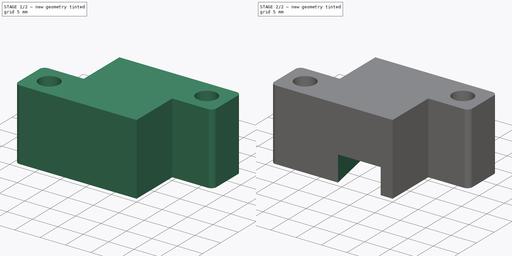
[diagram: build sequence overview — one tinted view per stage of 2, left to right]
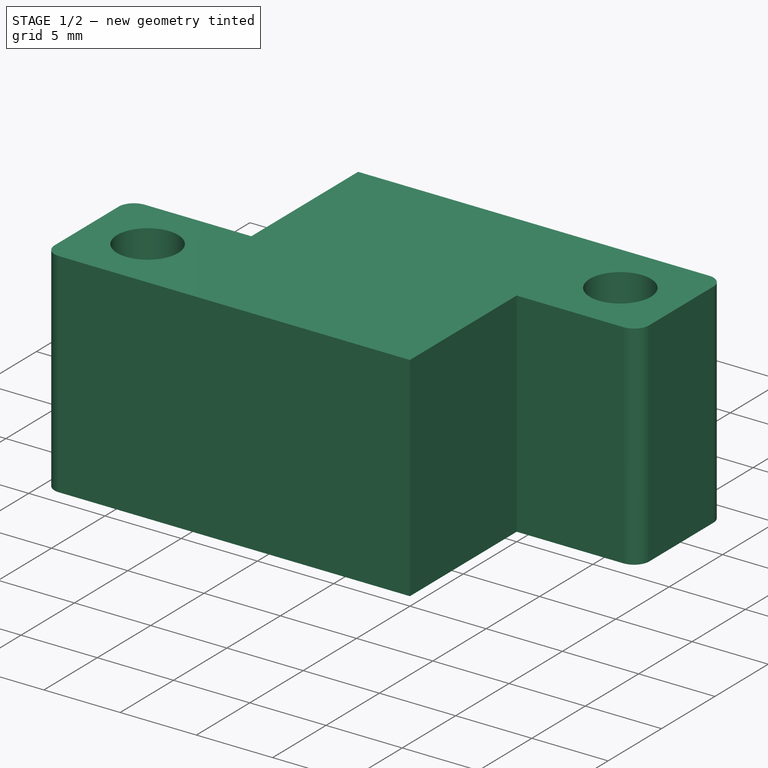
[diagram: stage 1 of 2 — iso view after this stage's code; geometry added in this stage tinted green]
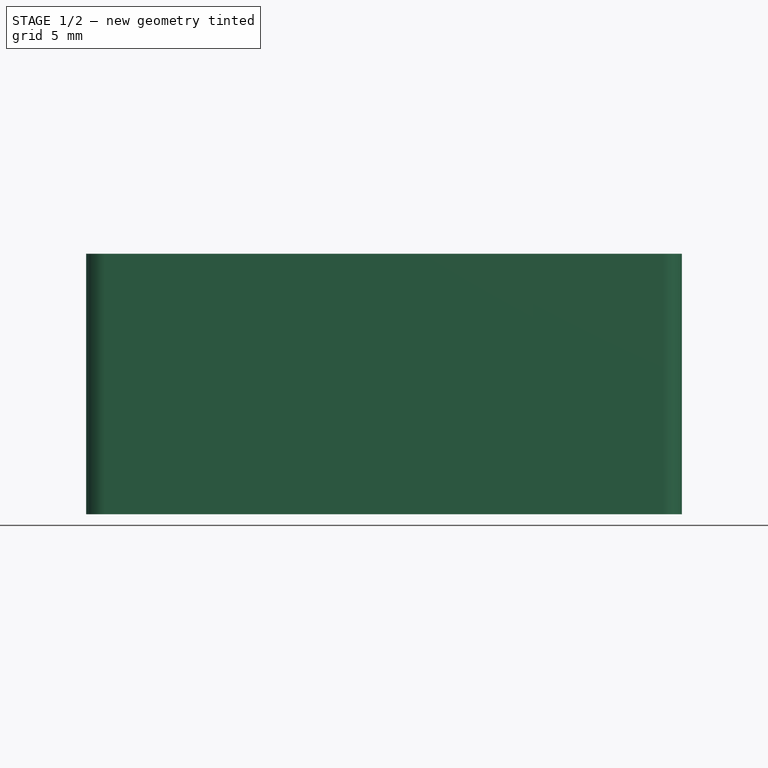
[diagram: stage 1 of 2 — front view after this stage's code; geometry added in this stage tinted green]
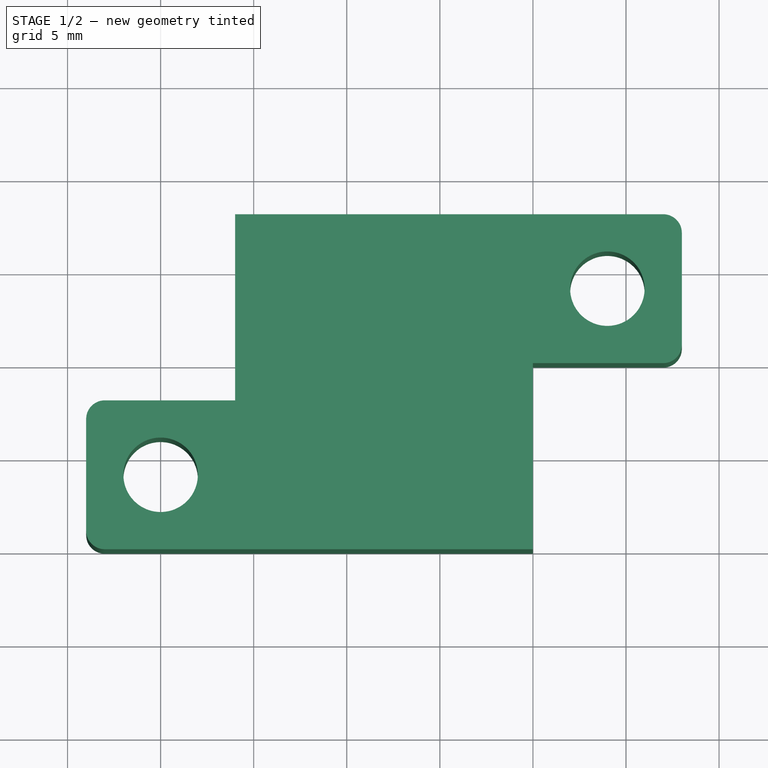
[diagram: stage 1 of 2 — top view after this stage's code; geometry added in this stage tinted green]
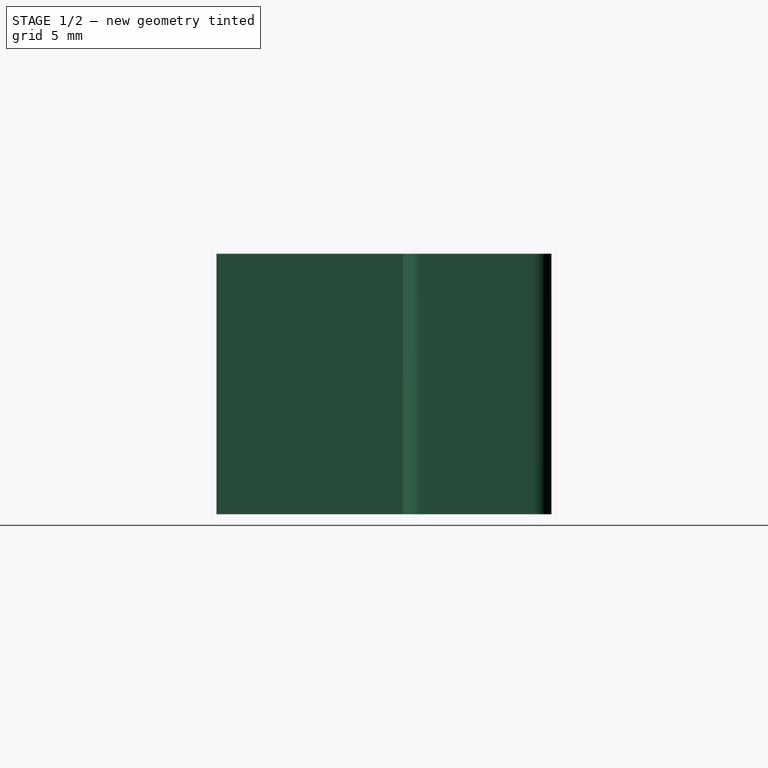
[diagram: stage 1 of 2 — right view after this stage's code; geometry added in this stage tinted green]
FCSTD DOCUMENT  (FreeCAD 0.19R)
Label: CaliperHead
License: All rights reserved
LicenseURL: http://en.wikipedia.org/wiki/All_rights_reserved
objects: Sketcher::SketchObject×2, PartDesign::Pad×1, PartDesign::Pocket×1, PartDesign::Body×1, App::Part×1
note: 7 computed .brp shape members not serialized (recipe doc carries the construction recipe); baked Part::Feature solids carry a one-line shape summary decoded from their .brp

FEATURE [Sketcher::SketchObject] Sketch
  FullyConstrained = true
  MapMode = 5
  Support = -> [XY_Plane]
  sketch-geometry (18):
    g0: LineSegment StartX=-16 StartY=18 StartZ=0 EndX=7 EndY=18 EndZ=0
    g1: LineSegment StartX=8 StartY=17 StartZ=0 EndX=8 EndY=11 EndZ=0
    g2: LineSegment StartX=7 StartY=10 StartZ=0 EndX=0 EndY=10 EndZ=0
    g3: LineSegment StartX=0 StartY=10 StartZ=0 EndX=0 EndY=0 EndZ=0
    g4: LineSegment StartX=0 StartY=0 StartZ=0 EndX=-23 EndY=0 EndZ=0
    g5: LineSegment StartX=-24 StartY=1 StartZ=0 EndX=-24 EndY=7 EndZ=0
    g6: LineSegment StartX=-23 StartY=8 StartZ=0 EndX=-16 EndY=8 EndZ=0
    g7: LineSegment StartX=-16 StartY=8 StartZ=0 EndX=-16 EndY=18 EndZ=0
    g8: Circle CenterX=4 CenterY=14 CenterZ=0 NormalX=0 NormalY=0 NormalZ=1 AngleXU=0 Radius=2
    g9: Circle CenterX=-20 CenterY=4 CenterZ=0 NormalX=0 NormalY=0 NormalZ=1 AngleXU=0 Radius=2
    g10: ArcOfCircle CenterX=7 CenterY=17 CenterZ=0 NormalX=0 NormalY=0 NormalZ=1 AngleXU=0 Radius=1 StartAngle=-1.8e-15 EndAngle=1.5708
    g11: GeomPoint X=8 Y=18 Z=0
    g12: ArcOfCircle CenterX=7 CenterY=11 CenterZ=0 NormalX=0 NormalY=0 NormalZ=1 AngleXU=0 Radius=1 StartAngle=4.71239 EndAngle=6.28319
    g13: GeomPoint X=8 Y=10 Z=0
    g14: ArcOfCircle CenterX=-23 CenterY=1 CenterZ=0 NormalX=0 NormalY=0 NormalZ=1 AngleXU=0 Radius=1 StartAngle=3.14159 EndAngle=4.71239
    g15: GeomPoint X=-24 Y=0 Z=0
    g16: ArcOfCircle CenterX=-23 CenterY=7 CenterZ=0 NormalX=0 NormalY=0 NormalZ=1 AngleXU=0 Radius=1 StartAngle=1.5708 EndAngle=3.14159
    g17: GeomPoint X=-24 Y=8 Z=0
  constraints (45):
    c: Horizontal(g0)
    c: Vertical(g1)
    c: Horizontal(g2)
    c: Vertical(g3)
    c: Horizontal(g4)
    c: Vertical(g5)
    c: Horizontal(g6)
    c: Coincident(g7,g0)
    c: Vertical(g7)
    c: DistanceX(g0,g11) = 24
    c: Coincident(g6,g7)
    c: DistanceX(g15,g4) = 24
    c: Coincident(g3,g4)
    c: Coincident(g2,g3)
    c: DistanceY(g13,g11) = 8
    c: DistanceY(g15,g17) = 8
    c: DistanceX(g17,g6) = 8
    c: Coincident(g3,g-1)
    c: DistanceY(g3,g3) = 10
    c: Diameter(g8) = 4
    c: Diameter(g9) = 4
    c: DistanceX(g8,g13) = 4
    c: DistanceY(g13,g8) = 4
    c: DistanceX(g15,g9) = 4
    c: DistanceY(g15,g9) = 4
    c: PointOnObject(g11,g0)
    c: PointOnObject(g11,g1)
    c: Tangent(g0,g10) = 1.5708
    c: Tangent(g1,g10) = 1.5708
    c: DistanceX(g10,g1) = 1
    c: PointOnObject(g13,g1)
    c: PointOnObject(g13,g2)
    c: Tangent(g1,g12) = 1.5708
    c: Tangent(g2,g12) = 1.5708
    c: DistanceX(g12,g1) = 1
    c: PointOnObject(g15,g4)
    c: PointOnObject(g15,g5)
    c: Tangent(g4,g14) = 1.5708
    c: Tangent(g5,g14) = 1.5708
    c: DistanceY(g4,g14) = 1
    c: PointOnObject(g17,g5)
    c: PointOnObject(g17,g6)
    c: Tangent(g5,g16) = 1.5708
    c: Tangent(g6,g16) = 1.5708
    c: DistanceX(g5,g16) = 1
FEATURE [PartDesign::Pad] Pad
  Direction = (1,1,1)
  Length = 14
  Length2 = 1
  Profile = -> Sketch
  Type = 0
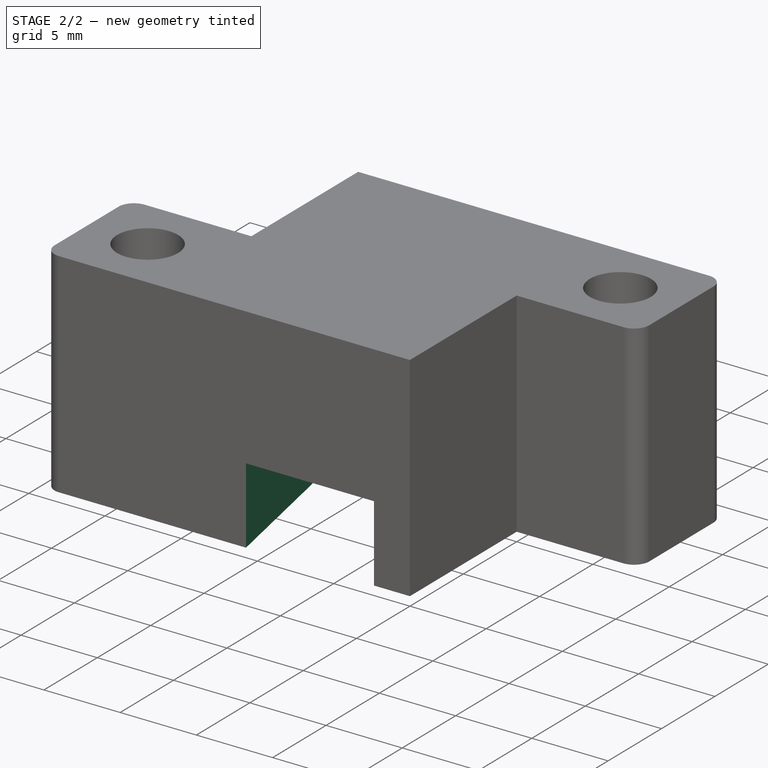
[diagram: stage 2 of 2 — iso view after this stage's code; geometry added in this stage tinted green]
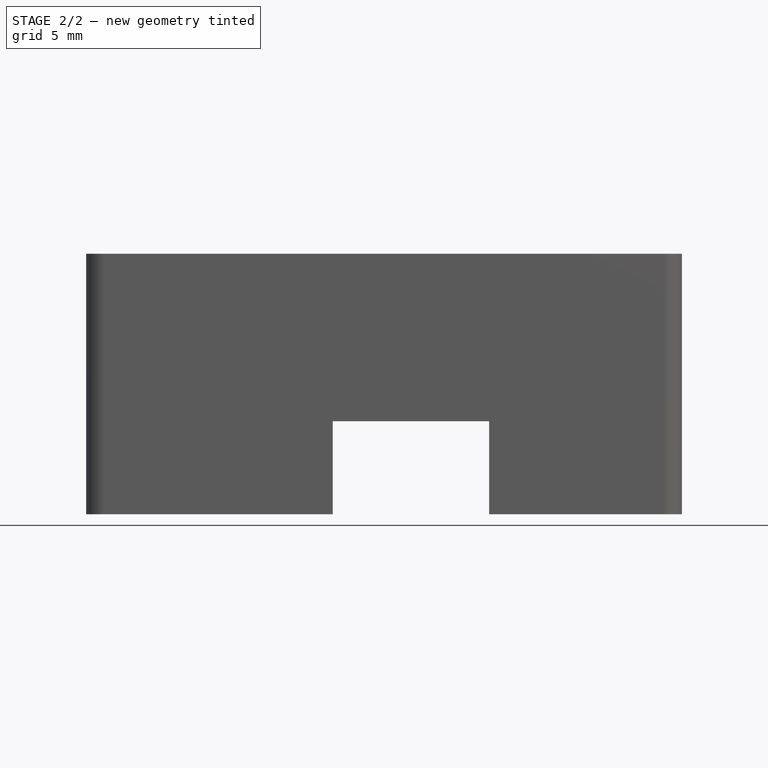
[diagram: stage 2 of 2 — front view after this stage's code; geometry added in this stage tinted green]
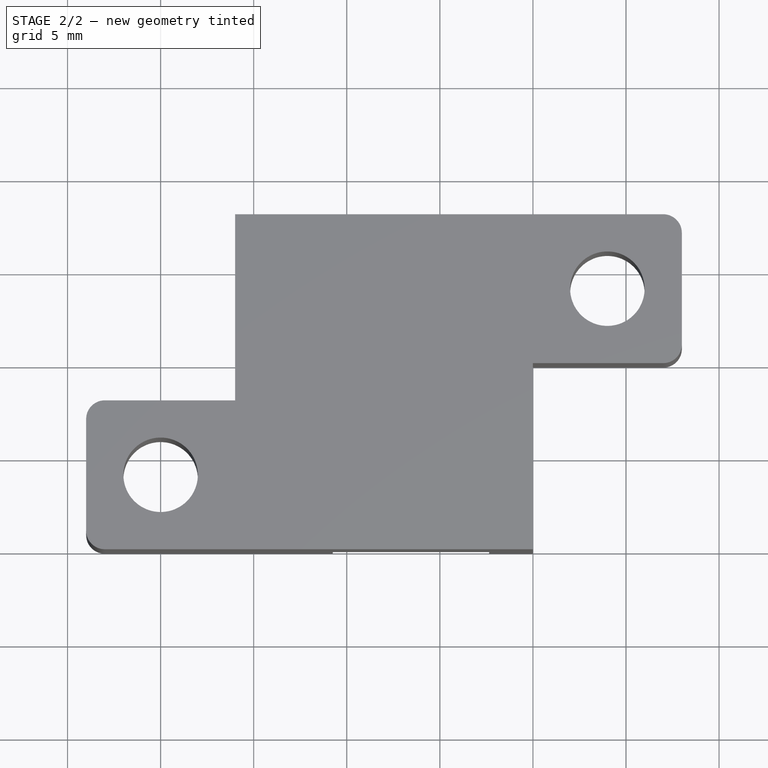
[diagram: stage 2 of 2 — top view after this stage's code; geometry added in this stage tinted green]
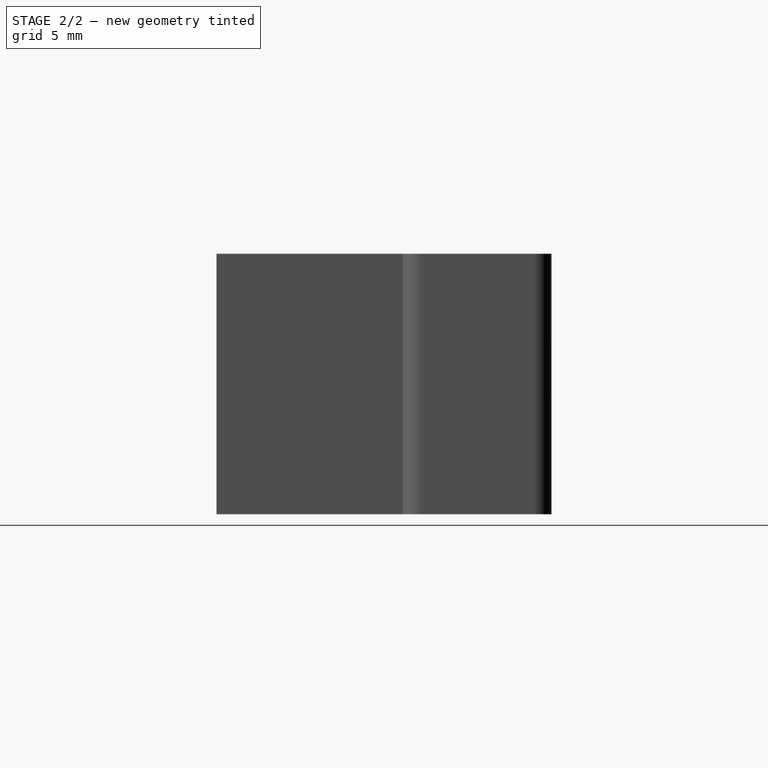
[diagram: stage 2 of 2 — right view after this stage's code; geometry added in this stage tinted green]
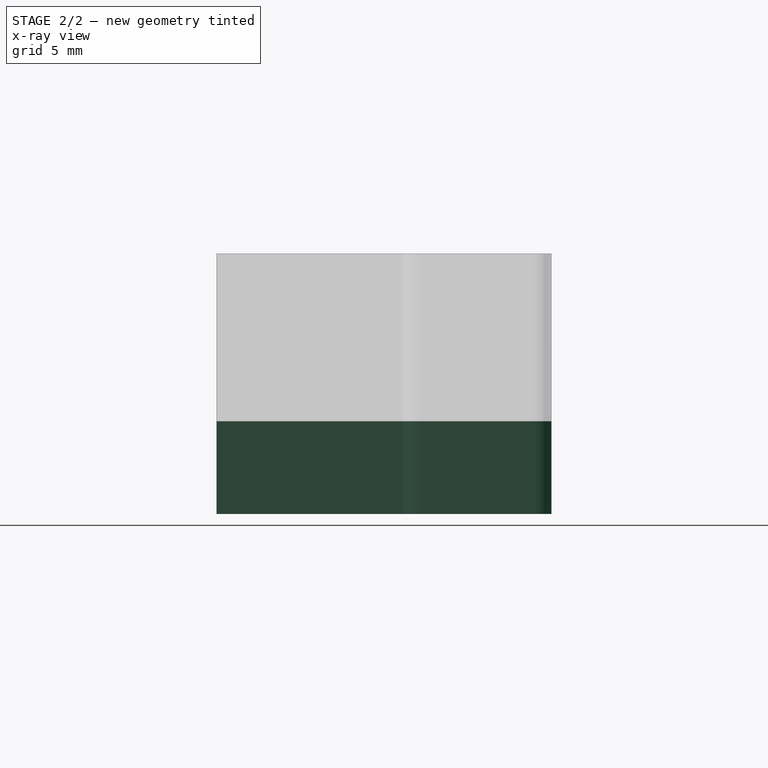
[diagram: stage 2 of 2 — x-ray composite at the right view; earlier geometry ghosted, this stage's added geometry solid]
FEATURE [Sketcher::SketchObject] Sketch001
  FullyConstrained = true
  MapMode = 5
  Support = -> [XY_Plane]
  sketch-geometry (4):
    g0: LineSegment StartX=-2.35 StartY=18 StartZ=0 EndX=-2.35 EndY=0 EndZ=0
    g1: LineSegment StartX=-10.75 StartY=0 StartZ=0 EndX=-14.35 EndY=18 EndZ=0
    g2: LineSegment StartX=-14.35 StartY=18 StartZ=0 EndX=-2.35 EndY=18 EndZ=0
    g3: LineSegment StartX=-10.75 StartY=0 StartZ=0 EndX=-2.35 EndY=0 EndZ=0
  constraints (12):
    c: Vertical(g0)
    c: Horizontal(g2)
    c: Coincident(g1,g2)
    c: Coincident(g0,g2)
    c: DistanceX(g2,g2) = 12
    c: Horizontal(g3)
    c: Coincident(g1,g3)
    c: Coincident(g0,g3)
    c: DistanceY(g0,g0) = 18
    c: DistanceX(g3,g3) = 8.4
    c: Horizontal(g0,g-1)
    c: DistanceX(g0,g-1) = 2.35
FEATURE [PartDesign::Pocket] Pocket
  BaseFeature = -> Pad
  Length = 5
  Length2 = 100
  Profile = -> Sketch001
  Reversed = true
  Type = 0
FEATURE [PartDesign::Body] Body
  Group = -> [Sketch,Pad,Sketch001,Pocket]
  Origin = -> Origin
  Tip = -> Pocket
FEATURE [App::Part] Part
  Group = -> [Body]
  Origin = -> Origin001
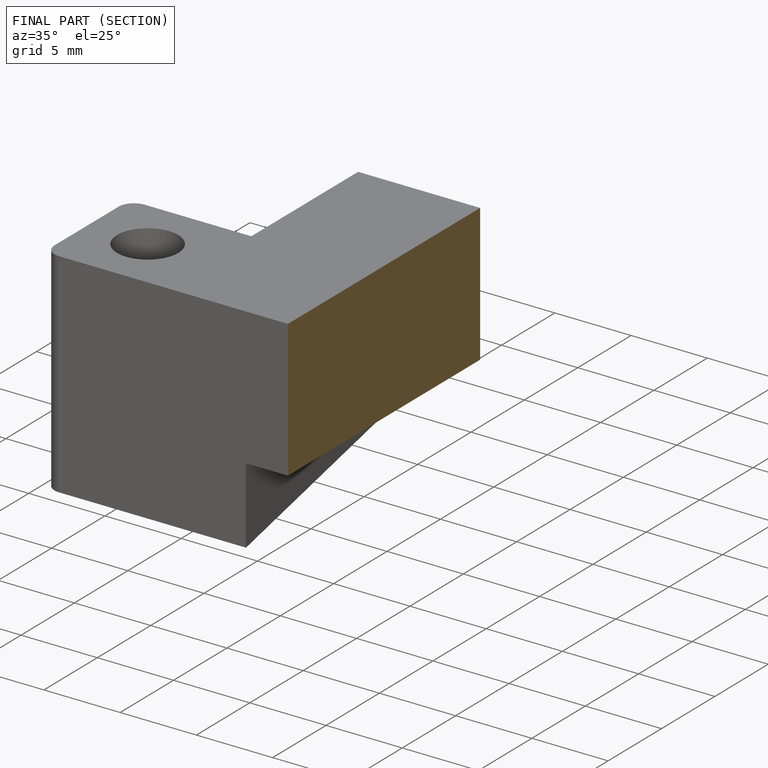
[diagram: finished part — half-section view (interior)]
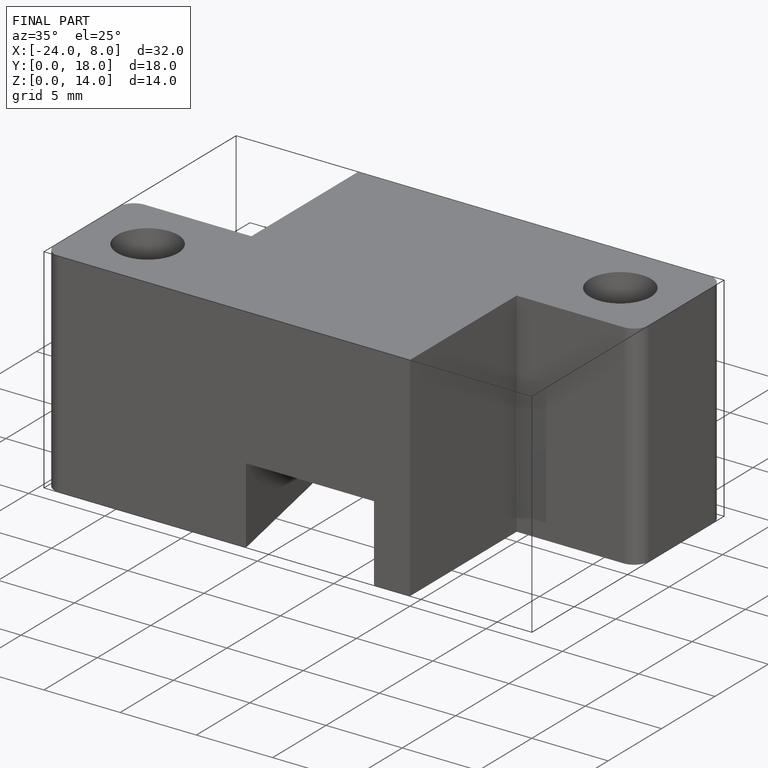
[diagram: finished part — iso view with bounding-box wireframe]
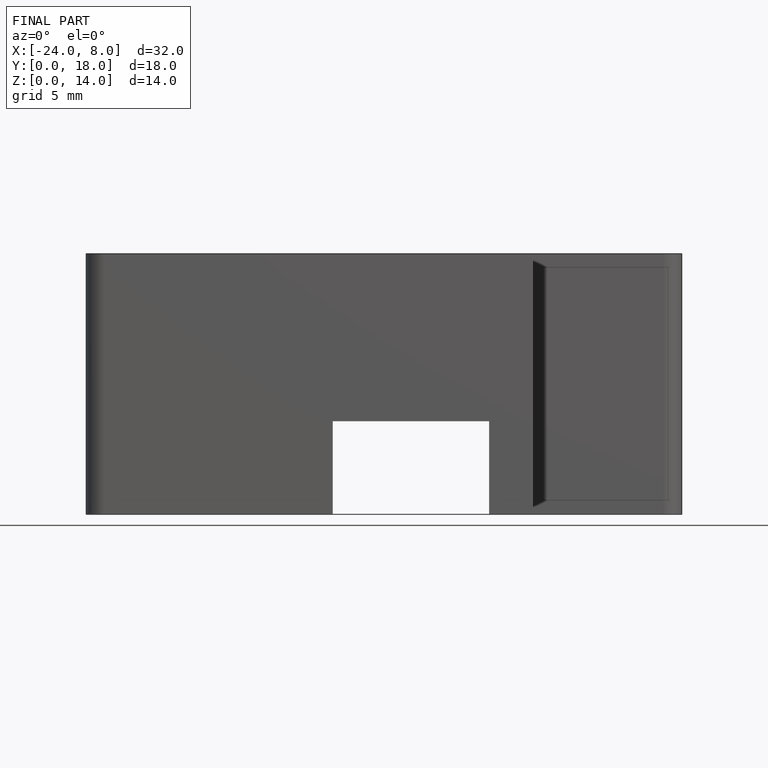
[diagram: finished part — front view with bounding-box wireframe]
